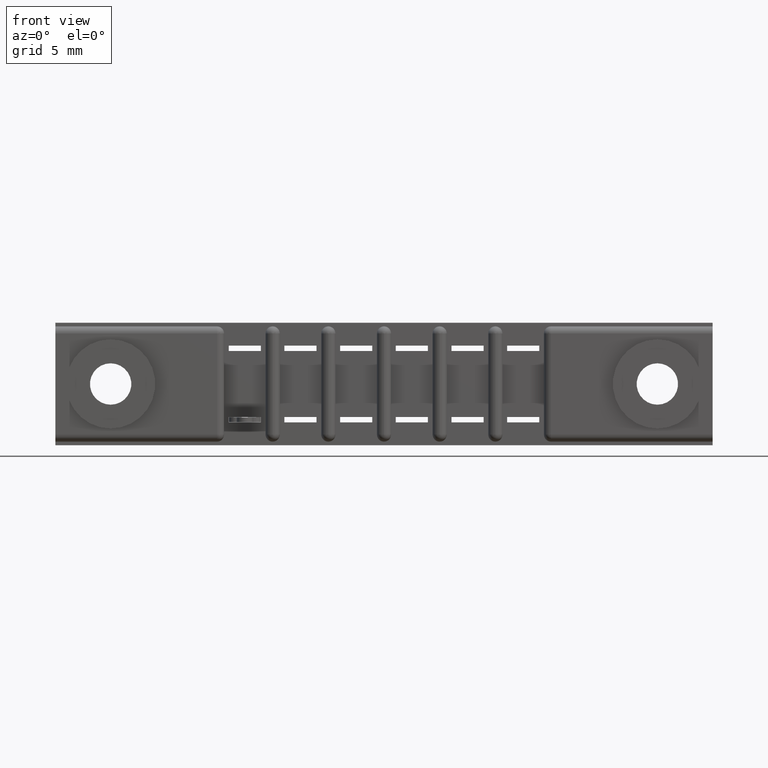
[diagram: clean part render]
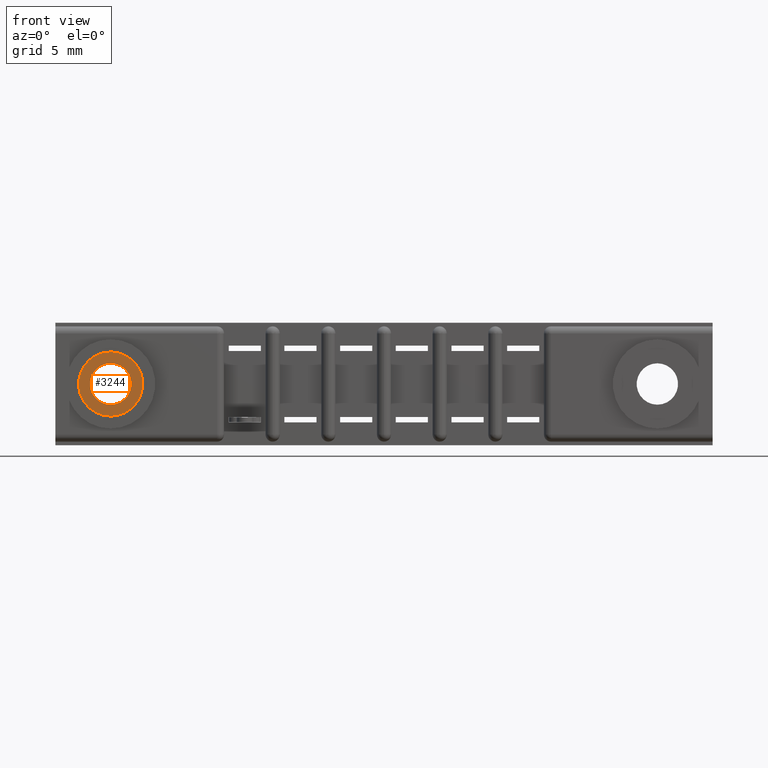
[diagram: same view with one face highlighted and labeled with its STEP entity id]
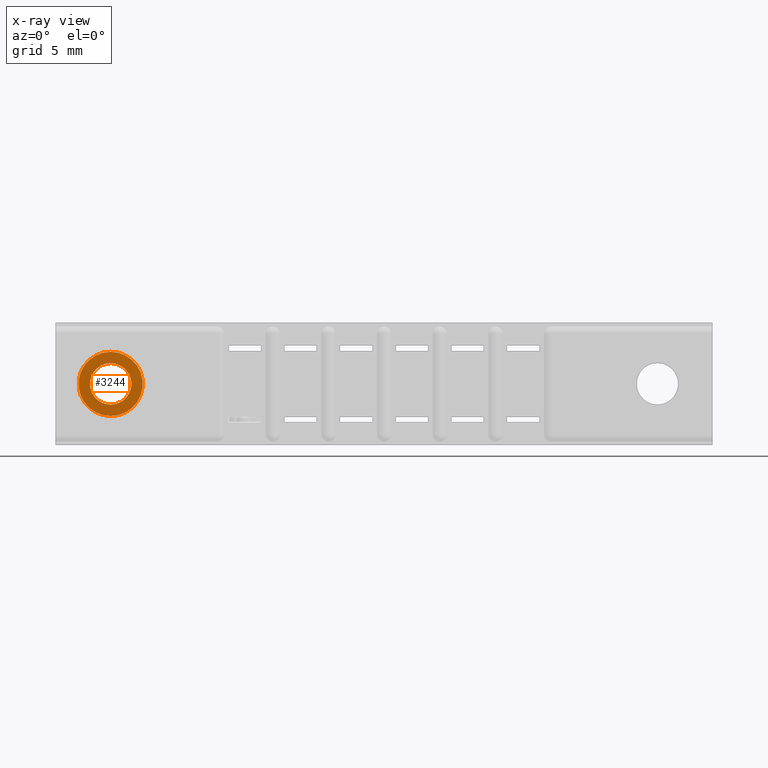
[diagram: x-ray of the same camera — body ghosted, the highlighted face saturated]
A machine part, front view. The second image highlights one B-rep face of the part: STEP entity #3244.
The next image is the same camera in x-ray: the body ghosted, the highlighted face saturated — about 0% of this face is hidden behind the body in this view.
In plain terms, the highlighted planar face has unit normal (-0, -1, 0).
Its self-contained STEP definition (entity closure, byte-faithful):
#156 = CARTESIAN_POINT ( 'NONE',  ( 7.102951435054640600E-018, 0.3279999999999999000, -0.05800000000000000300 ) ) ;
#481 = VERTEX_POINT ( 'NONE', #8961 ) ;
#957 = DIRECTION ( 'NONE',  ( -2.465190328815661900E-032, 1.000000000000000000, 0.0000000000000000000 ) ) ;
#1042 = PLANE ( 'NONE',  #3434 ) ;
#1191 = CIRCLE ( 'NONE', #2456, 0.08999999999999999700 ) ;
#1267 = VERTEX_POINT ( 'NONE', #2042 ) ;
#1684 = DIRECTION ( 'NONE',  ( -2.465190328815661900E-032, 1.000000000000000000, 0.0000000000000000000 ) ) ;
#1994 = EDGE_LOOP ( 'NONE', ( #6341, #4914 ) ) ;
#1999 = AXIS2_PLACEMENT_3D ( 'NONE', #3417, #9071, #4282 ) ;
#2016 = AXIS2_PLACEMENT_3D ( 'NONE', #6688, #1684, #7471 ) ;
#2042 = CARTESIAN_POINT ( 'NONE',  ( 1.102182119232617900E-017, 0.3279999999999999000, -0.08999999999999999700 ) ) ;
#2067 = CIRCLE ( 'NONE', #1999, 0.05800000000000000300 ) ;
#2456 = AXIS2_PLACEMENT_3D ( 'NONE', #8019, #8016, #8009 ) ;
#2514 = ORIENTED_EDGE ( 'NONE', *, *, #6556, .T. ) ;
#2525 = ORIENTED_EDGE ( 'NONE', *, *, #5658, .T. ) ;
#3160 = AXIS2_PLACEMENT_3D ( 'NONE', #6581, #957, #9404 ) ;
#3244 = ADVANCED_FACE ( 'NONE', ( #7054, #7262 ), #1042, .T. ) ;
#3417 = CARTESIAN_POINT ( 'NONE',  ( 0.0000000000000000000, 0.3279999999999999000, 0.0000000000000000000 ) ) ;
#3434 = AXIS2_PLACEMENT_3D ( 'NONE', #7943, #7186, #9863 ) ;
#4282 = DIRECTION ( 'NONE',  ( -3.408749858497505200E-034, 0.0000000000000000000, 1.000000000000000000 ) ) ;
#4320 = EDGE_CURVE ( 'NONE', #4704, #481, #5950, .T. ) ;
#4350 = CIRCLE ( 'NONE', #2016, 0.08999999999999999700 ) ;
#4704 = VERTEX_POINT ( 'NONE', #156 ) ;
#4914 = ORIENTED_EDGE ( 'NONE', *, *, #4320, .F. ) ;
#5004 = CARTESIAN_POINT ( 'NONE',  ( -3.067874872647754800E-035, 0.3279999999999999000, 0.08999999999999999700 ) ) ;
#5658 = EDGE_CURVE ( 'NONE', #7033, #1267, #1191, .T. ) ;
#5950 = CIRCLE ( 'NONE', #3160, 0.05800000000000000300 ) ;
#6341 = ORIENTED_EDGE ( 'NONE', *, *, #6559, .F. ) ;
#6556 = EDGE_CURVE ( 'NONE', #1267, #7033, #4350, .T. ) ;
#6559 = EDGE_CURVE ( 'NONE', #481, #4704, #2067, .T. ) ;
#6581 = CARTESIAN_POINT ( 'NONE',  ( 0.0000000000000000000, 0.3279999999999999000, 0.0000000000000000000 ) ) ;
#6688 = CARTESIAN_POINT ( 'NONE',  ( 0.0000000000000000000, 0.3279999999999999000, 0.0000000000000000000 ) ) ;
#7033 = VERTEX_POINT ( 'NONE', #5004 ) ;
#7054 = FACE_BOUND ( 'NONE', #1994, .T. ) ;
#7186 = DIRECTION ( 'NONE',  ( -2.465190328815661900E-032, 1.000000000000000000, -7.095886083921900600E-051 ) ) ;
#7262 = FACE_OUTER_BOUND ( 'NONE', #8689, .T. ) ;
#7471 = DIRECTION ( 'NONE',  ( -3.408749858497505600E-034, 0.0000000000000000000, 1.000000000000000000 ) ) ;
#7943 = CARTESIAN_POINT ( 'NONE',  ( 0.0000000000000000000, 0.3279999999999999000, 0.0000000000000000000 ) ) ;
#8009 = DIRECTION ( 'NONE',  ( -3.408749858497505600E-034, 0.0000000000000000000, 1.000000000000000000 ) ) ;
#8016 = DIRECTION ( 'NONE',  ( -2.465190328815661900E-032, 1.000000000000000000, 0.0000000000000000000 ) ) ;
#8019 = CARTESIAN_POINT ( 'NONE',  ( 0.0000000000000000000, 0.3279999999999999000, 0.0000000000000000000 ) ) ;
#8689 = EDGE_LOOP ( 'NONE', ( #2525, #2514 ) ) ;
#8961 = CARTESIAN_POINT ( 'NONE',  ( -1.977074917928553200E-035, 0.3279999999999999000, 0.05800000000000000300 ) ) ;
#9071 = DIRECTION ( 'NONE',  ( -2.465190328815661900E-032, 1.000000000000000000, 0.0000000000000000000 ) ) ;
#9404 = DIRECTION ( 'NONE',  ( -3.408749858497505200E-034, 0.0000000000000000000, 1.000000000000000000 ) ) ;
#9863 = DIRECTION ( 'NONE',  ( -3.408749858497505200E-034, 7.095886083921892200E-051, 1.000000000000000000 ) ) ;